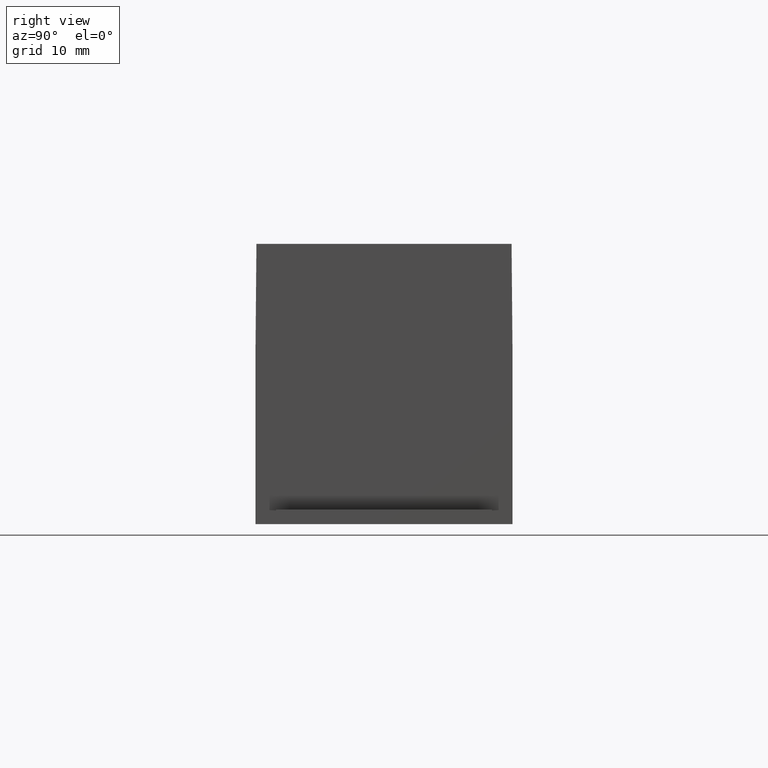
[diagram: clean part render]
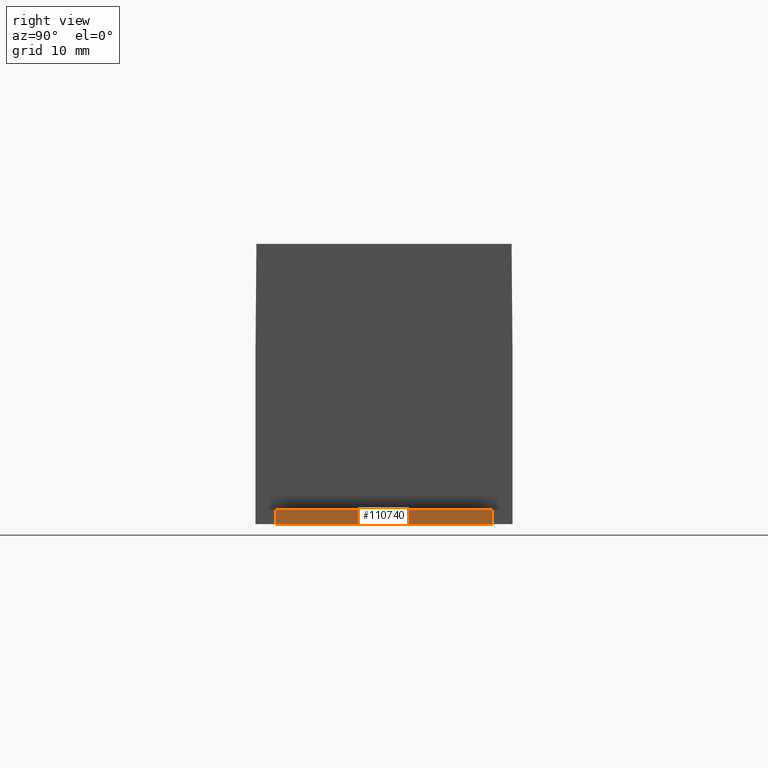
[diagram: same view with one face highlighted and labeled with its STEP entity id]
A machine part, right view. The second image highlights one B-rep face of the part: STEP entity #110740.
In plain terms, the highlighted planar face has unit normal (1, 0, 0).
Its self-contained STEP definition (entity closure, byte-faithful):
#23400=CARTESIAN_POINT('',(-137.382337741337,-195.978083115857,
1.75000000000004));
#23410=VERTEX_POINT('',#23400);
#23440=CARTESIAN_POINT('',(-137.382337741337,-195.978083115857,
53.7661048007928));
#23450=DIRECTION('',(0.,1.11022302462516E-16,-1.));
#23460=VECTOR('',#23450,1.);
#23470=LINE('',#23440,#23460);
#23480=CARTESIAN_POINT('',(-137.382337741337,-195.978083115857,20.25));
#23490=VERTEX_POINT('',#23480);
#23500=EDGE_CURVE('',#23490,#23410,#23470,.T.);
#95640=CARTESIAN_POINT('',(-137.382337741337,-194.728083115857,20.25));
#95650=VERTEX_POINT('',#95640);
#95700=CARTESIAN_POINT('',(-137.382337741337,-194.728083115857,20.25));
#95710=DIRECTION('',(0.,0.,-1.));
#95720=VECTOR('',#95710,1.);
#95730=LINE('',#95700,#95720);
#95740=CARTESIAN_POINT('',(-137.382337741337,-194.728083115857,
1.75000000000003));
#95750=VERTEX_POINT('',#95740);
#95760=EDGE_CURVE('',#95650,#95750,#95730,.T.);
#110400=CARTESIAN_POINT('',(-137.382337741337,-194.518083115857,
1.75000000000003));
#110410=DIRECTION('',(0.,-1.,0.));
#110420=VECTOR('',#110410,1.);
#110430=LINE('',#110400,#110420);
#110440=EDGE_CURVE('',#95750,#23410,#110430,.T.);
#110580=CARTESIAN_POINT('',(-137.382337741337,-195.503083115857,11.));
#110590=DIRECTION('',(-1.,0.,0.));
#110600=DIRECTION('',(0.,0.,1.));
#110610=AXIS2_PLACEMENT_3D('',#110580,#110590,#110600);
#110620=PLANE('',#110610);
#110630=ORIENTED_EDGE('',*,*,#110440,.T.);
#110640=ORIENTED_EDGE('',*,*,#95760,.T.);
#110650=CARTESIAN_POINT('',(-137.382337741337,-194.488083115857,20.25));
#110660=DIRECTION('',(0.,-1.,0.));
#110670=VECTOR('',#110660,1.);
#110680=LINE('',#110650,#110670);
#110690=EDGE_CURVE('',#95650,#23490,#110680,.T.);
#110700=ORIENTED_EDGE('',*,*,#110690,.F.);
#110710=ORIENTED_EDGE('',*,*,#23500,.F.);
#110720=EDGE_LOOP('',(#110710,#110700,#110640,#110630));
#110730=FACE_OUTER_BOUND('',#110720,.T.);
#110740=ADVANCED_FACE('',(#110730),#110620,.T.);